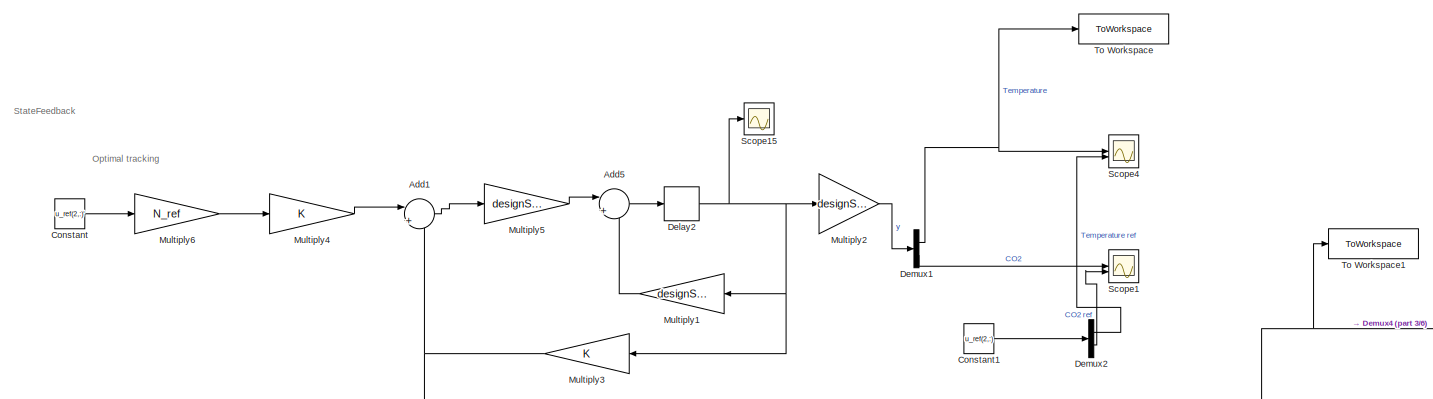
[diagram: root canvas - part 1/6, top left region]
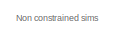
[diagram: root canvas - part 2/6, top left region]
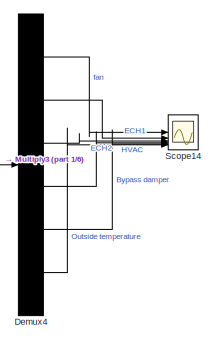
[diagram: root canvas - part 3/6, top center region]
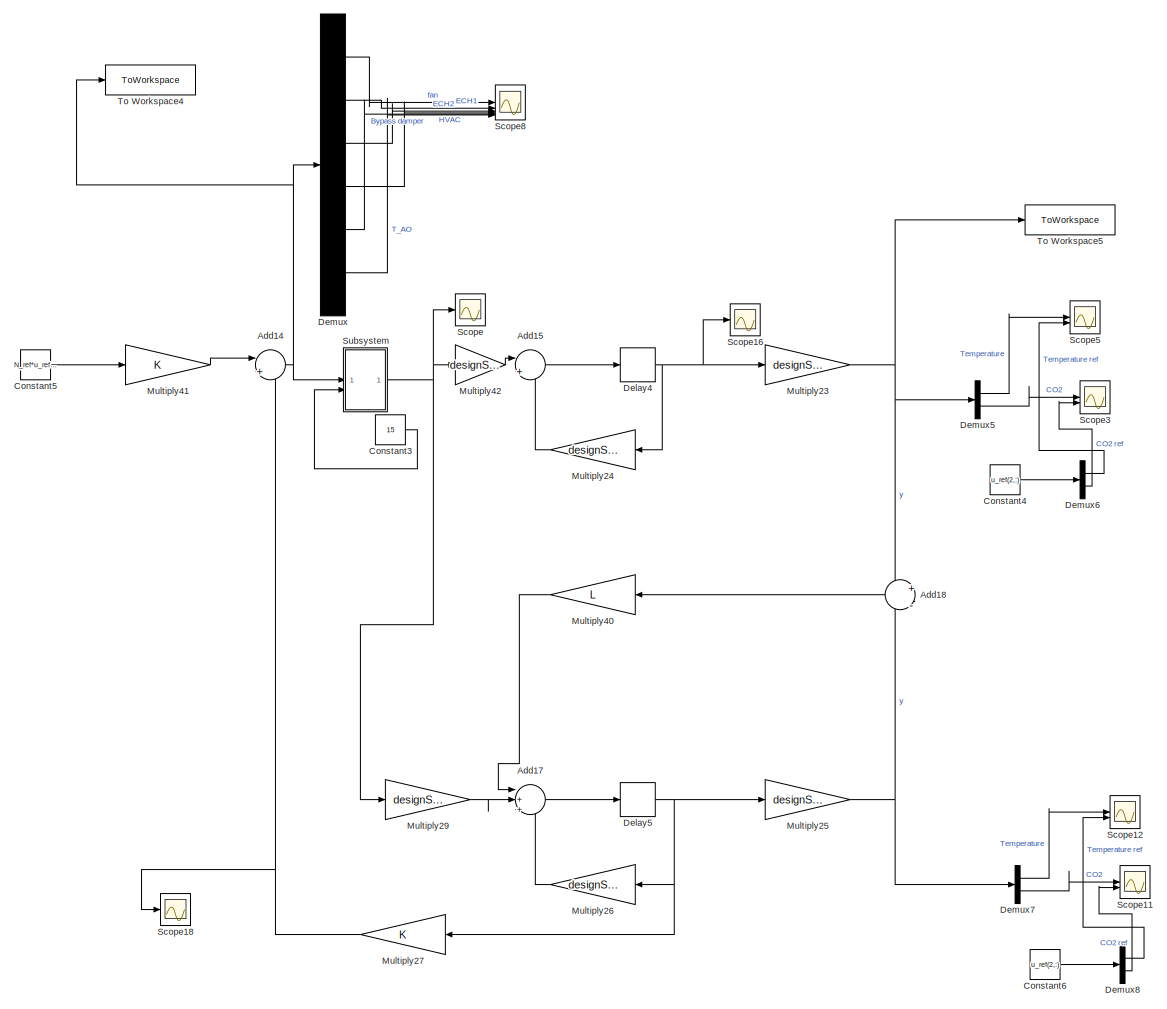
[diagram: root canvas - part 4/6, middle right region]
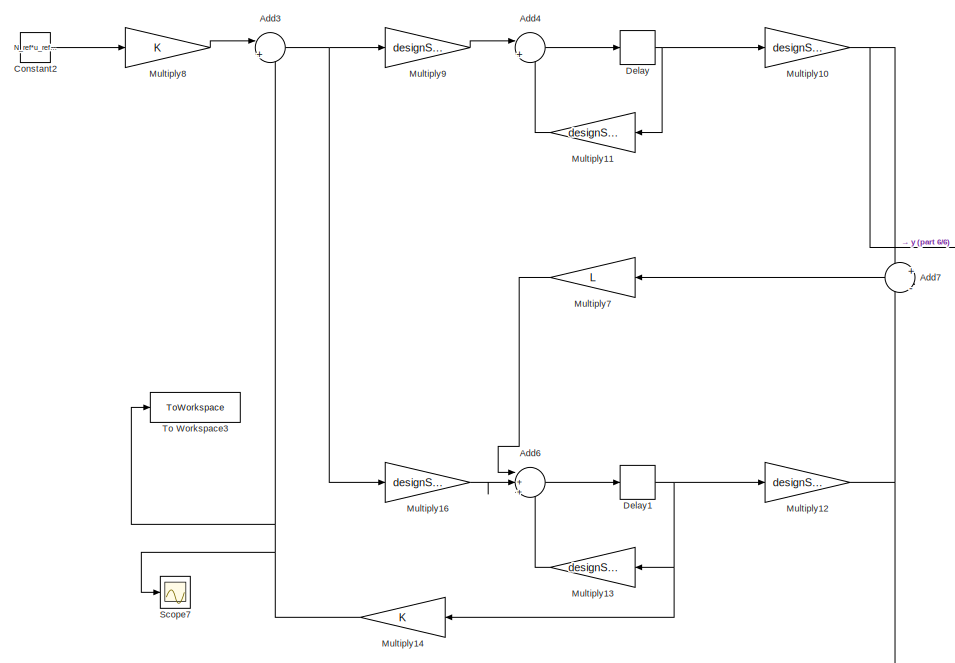
[diagram: root canvas - part 5/6, middle left region]
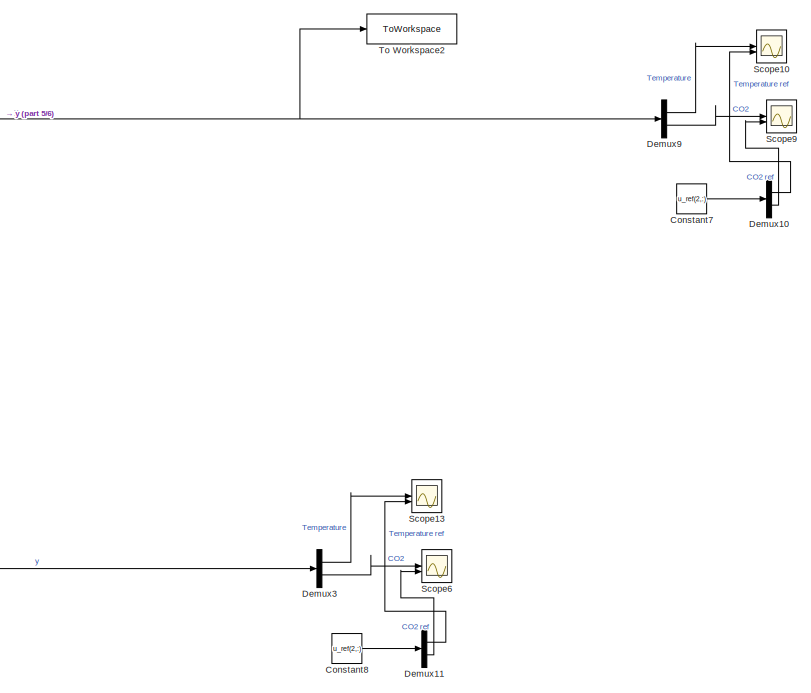
[diagram: root canvas - part 6/6, bottom center region]
MODEL slx_60d1f8d529c9
KIND model
CONFIG AbsTol = auto
CONFIG EnableMultiTasking = off
CONFIG FixedStep = auto
CONFIG MaxStep = auto
CONFIG MinStep = auto
CONFIG RelTol = 1e-3
CONFIG SampleTimeConstraint = Unconstrained
CONFIG SolverName = VariableStepAuto
CONFIG StartTime = 0.0
CONFIG StopTime = 1000
BLOCK [Sum] Add1
  Inputs = |+-
BLOCK [Sum] Add14
  Inputs = |+-
BLOCK [Sum] Add15
  Inputs = |++
BLOCK [Sum] Add17
  Inputs = |+++
BLOCK [Sum] Add18
  Inputs = +|-
  NameLocation = top
BLOCK [Sum] Add3
  Inputs = |+-
BLOCK [Sum] Add4
  Inputs = |++
BLOCK [Sum] Add5
  Inputs = |++
BLOCK [Sum] Add6
  Inputs = |+++
BLOCK [Sum] Add7
  Inputs = +|-
  NameLocation = top
BLOCK [Constant] Constant
  Value = u_ref(2,:)'
BLOCK [Constant] Constant1
  Value = u_ref(2,:)
BLOCK [Constant] Constant2
  Value = N_ref*u_ref(2,:)'
BLOCK [Constant] Constant3
  Value = 15
BLOCK [Constant] Constant4
  Value = u_ref(2,:)
BLOCK [Constant] Constant5
  Value = N_ref*u_ref(2,:)'
BLOCK [Constant] Constant6
  Value = u_ref(2,:)
BLOCK [Constant] Constant7
  Value = u_ref(2,:)
BLOCK [Constant] Constant8
  Value = u_ref(2,:)
BLOCK [Delay] Delay
  DelayLength = 1
  InputPortMap = u0
BLOCK [Delay] Delay1
  DelayLength = 1
  InputPortMap = u0
BLOCK [Delay] Delay2
  DelayLength = 1
  InputPortMap = u0
BLOCK [Delay] Delay4
  DelayLength = 1
  InputPortMap = u0
BLOCK [Delay] Delay5
  DelayLength = 1
  InputPortMap = u0
BLOCK [Demux] Demux
  Outputs = 6
BLOCK [Demux] Demux1
  Outputs = 2
BLOCK [Demux] Demux10
  Outputs = 2
BLOCK [Demux] Demux11
  Outputs = 2
BLOCK [Demux] Demux2
  Outputs = 2
BLOCK [Demux] Demux3
  Outputs = 2
BLOCK [Demux] Demux4
  Outputs = 6
BLOCK [Demux] Demux5
  Outputs = 2
BLOCK [Demux] Demux6
  Outputs = 2
BLOCK [Demux] Demux7
  Outputs = 2
BLOCK [Demux] Demux8
  Outputs = 2
BLOCK [Demux] Demux9
  Outputs = 2
BLOCK [Gain] Multiply1
  Gain = designSys.A
  Multiplication = Matrix(K*u)
  NameLocation = top
BLOCK [Gain] Multiply10
  Gain = designSys.C
  Multiplication = Matrix(K*u)
BLOCK [Gain] Multiply11
  Gain = designSys.A
  Multiplication = Matrix(K*u)
  NameLocation = top
BLOCK [Gain] Multiply12
  Gain = designSys.C
  Multiplication = Matrix(K*u)
BLOCK [Gain] Multiply13
  Gain = designSys.A
  Multiplication = Matrix(K*u)
  NameLocation = top
BLOCK [Gain] Multiply14
  Gain = K
  Multiplication = Matrix(K*u)
  NameLocation = top
BLOCK [Gain] Multiply16
  Gain = designSys.B
  Multiplication = Matrix(K*u)
BLOCK [Gain] Multiply2
  Gain = designSys.C
  Multiplication = Matrix(K*u)
BLOCK [Gain] Multiply23
  Gain = designSys.C
  Multiplication = Matrix(K*u)
BLOCK [Gain] Multiply24
  Gain = designSys.A
  Multiplication = Matrix(K*u)
  NameLocation = top
BLOCK [Gain] Multiply25
  Gain = designSys.C
  Multiplication = Matrix(K*u)
BLOCK [Gain] Multiply26
  Gain = designSys.A
  Multiplication = Matrix(K*u)
  NameLocation = top
BLOCK [Gain] Multiply27
  Gain = K
  Multiplication = Matrix(K*u)
  NameLocation = top
BLOCK [Gain] Multiply29
  Gain = designSys.B
  Multiplication = Matrix(K*u)
BLOCK [Gain] Multiply3
  Gain = K
  Multiplication = Matrix(K*u)
  NameLocation = top
BLOCK [Gain] Multiply4
  Multiplication = Matrix(K*u)
BLOCK [Gain] Multiply40
  Gain = L
  Multiplication = Matrix(K*u)
  NameLocation = top
BLOCK [Gain] Multiply41
  Multiplication = Matrix(K*u)
BLOCK [Gain] Multiply42
  Gain = designSys.B
  Multiplication = Matrix(K*u)
BLOCK [Gain] Multiply5
  Gain = designSys.B
  Multiplication = Matrix(K*u)
BLOCK [Gain] Multiply6
  Gain = N_ref
  Multiplication = Matrix(K*u)
BLOCK [Gain] Multiply7
  Gain = L
  Multiplication = Matrix(K*u)
  NameLocation = top
BLOCK [Gain] Multiply8
  Multiplication = Matrix(K*u)
BLOCK [Gain] Multiply9
  Gain = designSys.B
  Multiplication = Matrix(K*u)
BLOCK [Scope] Scope
  Floating = off
  NumInputPorts = 1
  ScopeSpecificationString = Simulink.scopes.TimeScopeBlockCfg('CurrentConfiguration', extmgr.ConfigurationSet(extmgr.Configuration('Core','General UI',true),extmgr.Configuration('Core','Source UI',true),extmgr.Configuration('Sources','WiredSimulink',true,'DataLoggingVariableName','ScopeData9'),extmgr.Configuration('Visuals','Time Domain',true,'SerializedDisplays',{struct('MinYLimReal','-8.06818','MaxYLimReal','12.15909','YLa...<+1503ch>
BLOCK [Scope] Scope1
  Floating = off
  NumInputPorts = 2
  ScopeSpecificationString = Simulink.scopes.TimeScopeBlockCfg('CurrentConfiguration', extmgr.ConfigurationSet(extmgr.Configuration('Core','General UI',true,'FigureColor',[1 1 1]),extmgr.Configuration('Core','Source UI',true),extmgr.Configuration('Sources','WiredSimulink',true,'DataLoggingVariableName','ScopeData1'),extmgr.Configuration('Visuals','Time Domain',true,'SerializedDisplays',{struct('MinYLimReal','-72.72156','MaxYL...<+1642ch>
BLOCK [Scope] Scope10
  Floating = off
  NumInputPorts = 2
  ScopeSpecificationString = Simulink.scopes.TimeScopeBlockCfg('CurrentConfiguration', extmgr.ConfigurationSet(extmgr.Configuration('Core','General UI',true),extmgr.Configuration('Core','Source UI',true),extmgr.Configuration('Sources','WiredSimulink',true,'DataLoggingVariableName','ScopeData7'),extmgr.Configuration('Visuals','Time Domain',true,'SerializedDisplays',{struct('MinYLimReal','-2.5','MaxYLimReal','22.5','YLabelReal'...<+1408ch>
BLOCK [Scope] Scope11
  Floating = off
  NumInputPorts = 2
  ScopeSpecificationString = Simulink.scopes.TimeScopeBlockCfg('CurrentConfiguration', extmgr.ConfigurationSet(extmgr.Configuration('Core','General UI',true),extmgr.Configuration('Core','Source UI',true),extmgr.Configuration('Sources','WiredSimulink',true,'DataLoggingVariableName','ScopeData5'),extmgr.Configuration('Visuals','Time Domain',true,'SerializedDisplays',{struct('MinYLimReal','-2.5','MaxYLimReal','22.5','YLabelReal'...<+1406ch>
BLOCK [Scope] Scope12
  Floating = off
  NumInputPorts = 2
  ScopeSpecificationString = Simulink.scopes.TimeScopeBlockCfg('CurrentConfiguration', extmgr.ConfigurationSet(extmgr.Configuration('Core','General UI',true),extmgr.Configuration('Core','Source UI',true),extmgr.Configuration('Sources','WiredSimulink',true,'DataLoggingVariableName','ScopeData6'),extmgr.Configuration('Visuals','Time Domain',true,'SerializedDisplays',{struct('MinYLimReal','-3.31787','MaxYLimReal','29.86085','YLa...<+1434ch>
BLOCK [Scope] Scope13
  Floating = off
  NumInputPorts = 2
  ScopeSpecificationString = Simulink.scopes.TimeScopeBlockCfg('CurrentConfiguration', extmgr.ConfigurationSet(extmgr.Configuration('Core','General UI',true),extmgr.Configuration('Core','Source UI',true),extmgr.Configuration('Sources','WiredSimulink',true,'DataLoggingVariableName','ScopeData9'),extmgr.Configuration('Visuals','Time Domain',true,'SerializedDisplays',{struct('MinYLimReal','-2.5','MaxYLimReal','22.5','YLabelReal'...<+1410ch>
BLOCK [Scope] Scope14
  Floating = off
  NumInputPorts = 6
  ScopeSpecificationString = Simulink.scopes.TimeScopeBlockCfg('CurrentConfiguration', extmgr.ConfigurationSet(extmgr.Configuration('Core','General UI',true),extmgr.Configuration('Core','Source UI',true),extmgr.Configuration('Sources','WiredSimulink',true,'DataLoggingVariableName','ScopeData12'),extmgr.Configuration('Visuals','Time Domain',true,'SerializedDisplays',{struct('MinYLimReal','-48.11144','MaxYLimReal','282.66962','...<+1470ch>
BLOCK [Scope] Scope15
  Floating = off
  NumInputPorts = 1
  ScopeSpecificationString = Simulink.scopes.TimeScopeBlockCfg('CurrentConfiguration', extmgr.ConfigurationSet(extmgr.Configuration('Core','General UI',true),extmgr.Configuration('Core','Source UI',true),extmgr.Configuration('Sources','WiredSimulink',true,'DataLoggingVariableName','ScopeData1'),extmgr.Configuration('Visuals','Time Domain',true,'SerializedDisplays',{struct('MinYLimReal','-0.7218','MaxYLimReal','0.0802','YLabel...<+1412ch>
BLOCK [Scope] Scope16
  Floating = off
  NumInputPorts = 1
  ScopeSpecificationString = Simulink.scopes.TimeScopeBlockCfg('CurrentConfiguration', extmgr.ConfigurationSet(extmgr.Configuration('Core','General UI',true),extmgr.Configuration('Core','Source UI',true),extmgr.Configuration('Sources','WiredSimulink',true,'DataLoggingVariableName','ScopeData2'),extmgr.Configuration('Visuals','Time Domain',true,'SerializedDisplays',{struct('MinYLimReal','-8.06818','MaxYLimReal','12.15909','YLa...<+1441ch>
BLOCK [Scope] Scope18
  Floating = off
  NumInputPorts = 1
  ScopeSpecificationString = Simulink.scopes.TimeScopeBlockCfg('CurrentConfiguration', extmgr.ConfigurationSet(extmgr.Configuration('Core','General UI',true),extmgr.Configuration('Core','Source UI',true),extmgr.Configuration('Sources','WiredSimulink',true,'DataLoggingVariableName','ScopeData16'),extmgr.Configuration('Visuals','Time Domain',true,'SerializedDisplays',{struct('MinYLimReal','-2152.00024','MaxYLimReal','239.98879'...<+1507ch>
BLOCK [Scope] Scope3
  Floating = off
  NumInputPorts = 2
  ScopeSpecificationString = Simulink.scopes.TimeScopeBlockCfg('CurrentConfiguration', extmgr.ConfigurationSet(extmgr.Configuration('Core','General UI',true,'FigureColor',[1 1 1]),extmgr.Configuration('Core','Source UI',true),extmgr.Configuration('Sources','WiredSimulink',true,'DataLoggingVariableName','ScopeData3'),extmgr.Configuration('Visuals','Time Domain',true,'SerializedDisplays',{struct('MinYLimReal','-108.63384','MaxY...<+1644ch>
BLOCK [Scope] Scope4
  Floating = off
  NumInputPorts = 2
  ScopeSpecificationString = Simulink.scopes.TimeScopeBlockCfg('CurrentConfiguration', extmgr.ConfigurationSet(extmgr.Configuration('Core','General UI',true),extmgr.Configuration('Core','Source UI',true),extmgr.Configuration('Sources','WiredSimulink',true,'DataLoggingVariableName','ScopeData2'),extmgr.Configuration('Visuals','Time Domain',true,'SerializedDisplays',{struct('MinYLimReal','-2.5','MaxYLimReal','22.5','YLabelReal'...<+1410ch>
BLOCK [Scope] Scope5
  Floating = off
  NumInputPorts = 2
  ScopeSpecificationString = Simulink.scopes.TimeScopeBlockCfg('CurrentConfiguration', extmgr.ConfigurationSet(extmgr.Configuration('Core','General UI',true,'FigureColor',[1 1 1]),extmgr.Configuration('Core','Source UI',true),extmgr.Configuration('Sources','WiredSimulink',true,'DataLoggingVariableName','ScopeData4'),extmgr.Configuration('Visuals','Time Domain',true,'SerializedDisplays',{struct('MinYLimReal','-3.31787','MaxYLi...<+1604ch>
BLOCK [Scope] Scope6
  Floating = off
  NumInputPorts = 2
  ScopeSpecificationString = Simulink.scopes.TimeScopeBlockCfg('CurrentConfiguration', extmgr.ConfigurationSet(extmgr.Configuration('Core','General UI',true),extmgr.Configuration('Core','Source UI',true),extmgr.Configuration('Sources','WiredSimulink',true,'DataLoggingVariableName','ScopeData10'),extmgr.Configuration('Visuals','Time Domain',true,'SerializedDisplays',{struct('MinYLimReal','-2.5','MaxYLimReal','22.5','YLabelReal...<+1407ch>
BLOCK [Scope] Scope7
  Floating = off
  NumInputPorts = 1
  ScopeSpecificationString = Simulink.scopes.TimeScopeBlockCfg('CurrentConfiguration', extmgr.ConfigurationSet(extmgr.Configuration('Core','General UI',true),extmgr.Configuration('Core','Source UI',true),extmgr.Configuration('Sources','WiredSimulink',true,'DataLoggingVariableName','ScopeData5'),extmgr.Configuration('Visuals','Time Domain',true,'SerializedDisplays',{struct('MinYLimReal','-1952.13479','MaxYLimReal','217.6985','...<+1506ch>
BLOCK [Scope] Scope8
  Floating = off
  NumInputPorts = 6
  ScopeSpecificationString = Simulink.scopes.TimeScopeBlockCfg('CurrentConfiguration', extmgr.ConfigurationSet(extmgr.Configuration('Core','General UI',true,'FigureColor',[1 1 1]),extmgr.Configuration('Core','Source UI',true),extmgr.Configuration('Sources','WiredSimulink',true,'DataLoggingVariableName','ScopeData11'),extmgr.Configuration('Visuals','Time Domain',true,'SerializedDisplays',{struct('MinYLimReal','-95.6154','MaxYL...<+1607ch>
BLOCK [Scope] Scope9
  Floating = off
  NumInputPorts = 2
  ScopeSpecificationString = Simulink.scopes.TimeScopeBlockCfg('CurrentConfiguration', extmgr.ConfigurationSet(extmgr.Configuration('Core','General UI',true),extmgr.Configuration('Core','Source UI',true),extmgr.Configuration('Sources','WiredSimulink',true,'DataLoggingVariableName','ScopeData8'),extmgr.Configuration('Visuals','Time Domain',true,'SerializedDisplays',{struct('MinYLimReal','-2.5','MaxYLimReal','22.5','YLabelReal'...<+1406ch>
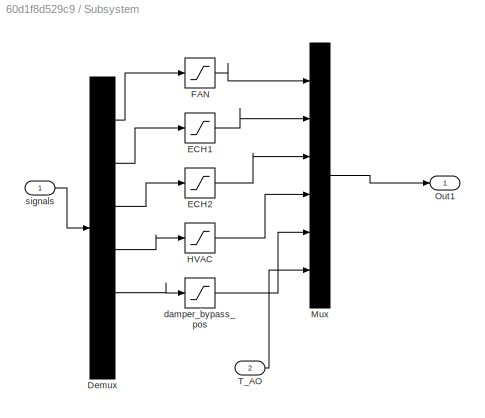
BLOCK [SubSystem] Subsystem
  PartitionName = Subsystem
  ScheduleAs = Periodic partition
  SystemSampleTime = 15
  TreatAsAtomicUnit = on
BLOCK [Demux] Subsystem/Demux
  Outputs = 6
BLOCK [Saturate] Subsystem/ECH1
  LowerLimit = 0
  UpperLimit = 100
BLOCK [Saturate] Subsystem/ECH2
  LowerLimit = 0
  UpperLimit = 100
BLOCK [Saturate] Subsystem/FAN
  LowerLimit = 0
  UpperLimit = 100
BLOCK [Saturate] Subsystem/HVAC
  LowerLimit = -100
  UpperLimit = 100
BLOCK [Mux] Subsystem/Mux
  DisplayOption = bar
  Inputs = 6
BLOCK [Outport] Subsystem/Out1
BLOCK [Inport] Subsystem/T_AO
  Port = 2
BLOCK [Saturate] Subsystem/damper_bypass_pos
  LowerLimit = 0
  UpperLimit = 100
BLOCK [Inport] Subsystem/signals
BLOCK [ToWorkspace] To Workspace
  FixptAsFi = on
  MaxDataPoints = inf
  SampleTime = -1
  VariableName = OutputNonConWithoutObs
BLOCK [ToWorkspace] To Workspace1
  FixptAsFi = on
  MaxDataPoints = inf
  SampleTime = -1
  VariableName = InputNonConWithoutObs1
BLOCK [ToWorkspace] To Workspace2
  FixptAsFi = on
  MaxDataPoints = inf
  SampleTime = -1
  VariableName = OutputNonConWithObs
BLOCK [ToWorkspace] To Workspace3
  FixptAsFi = on
  MaxDataPoints = inf
  SampleTime = -1
  VariableName = InputNonConWithObs
BLOCK [ToWorkspace] To Workspace4
  FixptAsFi = on
  MaxDataPoints = inf
  SampleTime = -1
  VariableName = InputConWithObs1
BLOCK [ToWorkspace] To Workspace5
  FixptAsFi = on
  MaxDataPoints = inf
  SampleTime = -1
  VariableName = OutputConWithObs
ANNOTATION (root): Optimal tracking
ANNOTATION (root): Non constrained sims
ANNOTATION (root): StateFeedback
NET Add14:1 -> Demux:1, Subsystem:1, To Workspace4:1
LINE Add15:1 -> Delay4:1
LINE Add17:1 -> Delay5:1
LINE Add18:1 -> Multiply40:1
LINE Add1:1 -> Multiply5:1
NET Add3:1 -> Multiply16:1, Multiply9:1
LINE Add4:1 -> Delay:1
LINE Add5:1 -> Delay2:1
LINE Add6:1 -> Delay1:1
LINE Add7:1 -> Multiply7:1
LINE Constant1:1 -> Demux2:1
LINE Constant2:1 -> Multiply8:1
LINE Constant3:1 -> Subsystem:2
LINE Constant4:1 -> Demux6:1
LINE Constant5:1 -> Multiply41:1
LINE Constant6:1 -> Demux8:1
LINE Constant7:1 -> Demux10:1
LINE Constant8:1 -> Demux11:1
LINE Constant:1 -> Multiply6:1
NET Delay1:1 -> Multiply12:1, Multiply13:1, Multiply14:1
NET Delay2:1 -> Multiply1:1, Multiply2:1, Multiply3:1, Scope15:1
NET Delay4:1 -> Multiply23:1, Multiply24:1, Scope16:1
NET Delay5:1 -> Multiply25:1, Multiply26:1, Multiply27:1
NET Delay:1 -> Multiply10:1, Multiply11:1
LINE Demux10:1 -> Scope10:2
LINE Demux10:2 -> Scope9:2
LINE Demux11:1 -> Scope13:2
LINE Demux11:2 -> Scope6:2
NET Demux1:1 -> Scope4:1, To Workspace:1
LINE Demux1:2 -> Scope1:1
LINE Demux2:1 -> Scope4:2
LINE Demux2:2 -> Scope1:2
LINE Demux3:1 -> Scope13:1
LINE Demux3:2 -> Scope6:1
LINE Demux4:1 -> Scope14:1
LINE Demux4:2 -> Scope14:2
LINE Demux4:3 -> Scope14:3
LINE Demux4:4 -> Scope14:4
LINE Demux4:5 -> Scope14:5
LINE Demux4:6 -> Scope14:6
LINE Demux5:1 -> Scope5:1
LINE Demux5:2 -> Scope3:1
LINE Demux6:1 -> Scope5:2
LINE Demux6:2 -> Scope3:2
LINE Demux7:1 -> Scope12:1
LINE Demux7:2 -> Scope11:1
LINE Demux8:1 -> Scope12:2
LINE Demux8:2 -> Scope11:2
LINE Demux9:1 -> Scope10:1
LINE Demux9:2 -> Scope9:1
LINE Demux:1 -> Scope8:1
LINE Demux:2 -> Scope8:2
LINE Demux:3 -> Scope8:3
LINE Demux:4 -> Scope8:4
LINE Demux:5 -> Scope8:5
LINE Demux:6 -> Scope8:6
NET Multiply10:1 -> Add7:1, Demux9:1, To Workspace2:1
LINE Multiply11:1 -> Add4:2
NET Multiply12:1 -> Add7:2, Demux3:1
LINE Multiply13:1 -> Add6:3
NET Multiply14:1 -> Add3:2, Scope7:1, To Workspace3:1
LINE Multiply16:1 -> Add6:2
LINE Multiply1:1 -> Add5:2
NET Multiply23:1 -> Add18:1, Demux5:1, To Workspace5:1
LINE Multiply24:1 -> Add15:2
NET Multiply25:1 -> Add18:2, Demux7:1
LINE Multiply26:1 -> Add17:3
NET Multiply27:1 -> Add14:2, Scope18:1
LINE Multiply29:1 -> Add17:2
LINE Multiply2:1 -> Demux1:1
NET Multiply3:1 -> Add1:2, Demux4:1, To Workspace1:1
LINE Multiply40:1 -> Add17:1
LINE Multiply41:1 -> Add14:1
LINE Multiply42:1 -> Add15:1
LINE Multiply4:1 -> Add1:1
LINE Multiply5:1 -> Add5:1
LINE Multiply6:1 -> Multiply4:1
LINE Multiply7:1 -> Add6:1
LINE Multiply8:1 -> Add3:1
LINE Multiply9:1 -> Add4:1
LINE Subsystem/Demux:1 -> Subsystem/FAN:1
LINE Subsystem/Demux:2 -> Subsystem/ECH1:1
LINE Subsystem/Demux:3 -> Subsystem/ECH2:1
LINE Subsystem/Demux:4 -> Subsystem/HVAC:1
LINE Subsystem/Demux:5 -> Subsystem/damper_bypass_pos:1
LINE Subsystem/ECH1:1 -> Subsystem/Mux:2
LINE Subsystem/ECH2:1 -> Subsystem/Mux:3
LINE Subsystem/FAN:1 -> Subsystem/Mux:1
LINE Subsystem/HVAC:1 -> Subsystem/Mux:4
LINE Subsystem/Mux:1 -> Subsystem/Out1:1
LINE Subsystem/T_AO:1 -> Subsystem/Mux:6
LINE Subsystem/damper_bypass_pos:1 -> Subsystem/Mux:5
LINE Subsystem/signals:1 -> Subsystem/Demux:1
NET Subsystem:1 -> Multiply29:1, Multiply42:1, Scope:1
note: NET lines group one-source signal fan-out (src -> all destinations, sorted); 1:1 wires keep LINE
